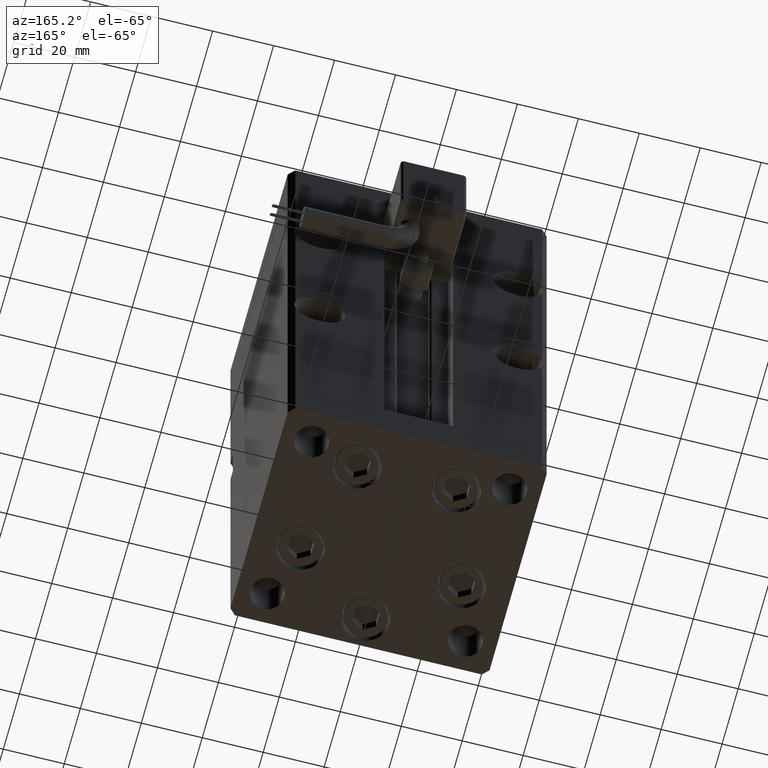
[diagram: clean part render]
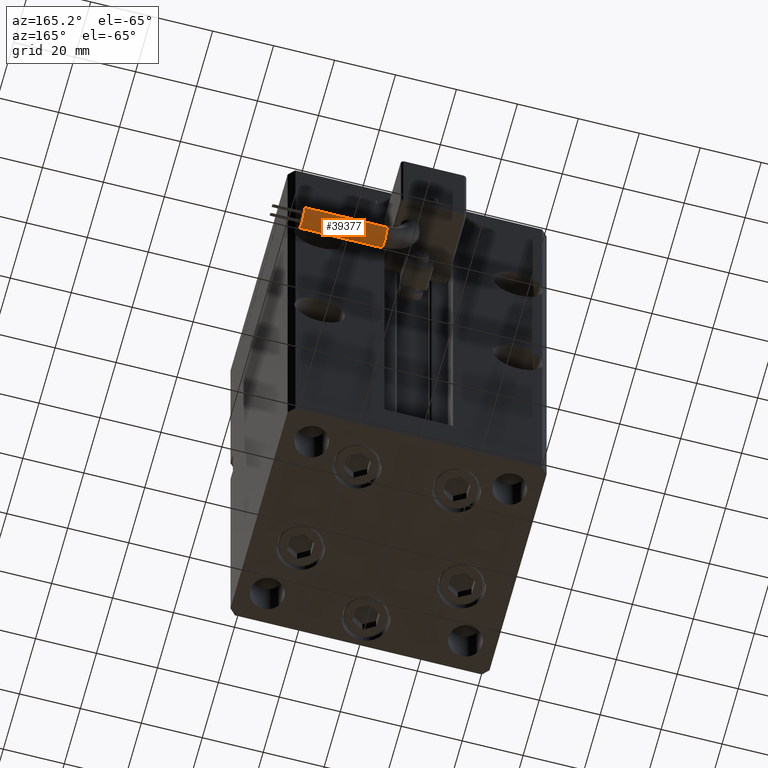
[diagram: same view with one face highlighted and labeled with its STEP entity id]
A machine part, auxiliary view. The second image highlights one B-rep face of the part: STEP entity #39377.
In plain terms, the highlighted cylindrical surface (edge-blend (fillet) strip) has radius 3.5 mm, axis along (1, -0, 0).
Its self-contained STEP definition (entity closure, byte-faithful):
#396 = AXIS2_PLACEMENT_3D ( 'NONE', #4714, #22028, #10084 ) ;
#1570 = FACE_OUTER_BOUND ( 'NONE', #39524, .T. ) ;
#3683 = EDGE_CURVE ( 'NONE', #53779, #36851, #28318, .T. ) ;
#4714 = CARTESIAN_POINT ( 'NONE',  ( 13.79999999999999893, 42.00000000000000000, -65.00000000000000000 ) ) ;
#4867 = DIRECTION ( 'NONE',  ( 1.000000000000000000, -2.599999999999999847E-16, 2.220446049250000002E-16 ) ) ;
#6103 = LINE ( 'NONE', #31659, #30803 ) ;
#6420 = CARTESIAN_POINT ( 'NONE',  ( 40.80000000000000426, 38.50000000000000000, -65.00000000000000000 ) ) ;
#6557 = EDGE_CURVE ( 'NONE', #52481, #7472, #48366, .T. ) ;
#7472 = VERTEX_POINT ( 'NONE', #19923 ) ;
#10084 = DIRECTION ( 'NONE',  ( -4.956352788505158337E-16, -1.000000000000000000, 0.000000000000000000 ) ) ;
#10086 = DIRECTION ( 'NONE',  ( 0.000000000000000000, 0.000000000000000000, -1.000000000000000000 ) ) ;
#11669 = CIRCLE ( 'NONE', #23479, 3.500000000000003109 ) ;
#12453 = VECTOR ( 'NONE', #4867, 1000.000000000000000 ) ;
#16064 = CARTESIAN_POINT ( 'NONE',  ( 40.80000000000000426, 45.50000000000000711, -65.00000000000000000 ) ) ;
#19183 = ORIENTED_EDGE ( 'NONE', *, *, #54122, .T. ) ;
#19430 = VERTEX_POINT ( 'NONE', #36648 ) ;
#19923 = CARTESIAN_POINT ( 'NONE',  ( 13.79999999999999893, 42.00000000000000000, -68.50000000000000000 ) ) ;
#20522 = DIRECTION ( 'NONE',  ( 1.000000000000000000, 0.000000000000000000, 2.220446049250000002E-16 ) ) ;
#22028 = DIRECTION ( 'NONE',  ( 1.000000000000000000, -2.599999999999999847E-16, 2.220446049250000002E-16 ) ) ;
#23479 = AXIS2_PLACEMENT_3D ( 'NONE', #42671, #20522, #46377 ) ;
#23669 = EDGE_CURVE ( 'NONE', #52481, #53779, #6103, .T. ) ;
#28318 = CIRCLE ( 'NONE', #37365, 3.500000000000003109 ) ;
#28507 = DIRECTION ( 'NONE',  ( 1.000000000000000000, 0.000000000000000000, 2.220446049250000002E-16 ) ) ;
#29665 = CARTESIAN_POINT ( 'NONE',  ( 13.79999999999999893, 42.00000000000000000, -65.00000000000000000 ) ) ;
#30803 = VECTOR ( 'NONE', #45289, 1000.000000000000000 ) ;
#31659 = CARTESIAN_POINT ( 'NONE',  ( 13.79999999999999716, 38.50000000000000000, -65.00000000000000000 ) ) ;
#36555 = AXIS2_PLACEMENT_3D ( 'NONE', #29665, #42724, #43565 ) ;
#36648 = CARTESIAN_POINT ( 'NONE',  ( 13.79999999999999893, 45.50000000000000711, -65.00000000000000000 ) ) ;
#36851 = VERTEX_POINT ( 'NONE', #16064 ) ;
#37365 = AXIS2_PLACEMENT_3D ( 'NONE', #49550, #28507, #10086 ) ;
#38445 = ORIENTED_EDGE ( 'NONE', *, *, #49363, .T. ) ;
#39377 = ADVANCED_FACE ( 'NONE', ( #1570 ), #48995, .T. ) ;
#39524 = EDGE_LOOP ( 'NONE', ( #41065, #19183, #38445, #48019, #55630 ) ) ;
#41065 = ORIENTED_EDGE ( 'NONE', *, *, #6557, .T. ) ;
#42671 = CARTESIAN_POINT ( 'NONE',  ( 13.79999999999999893, 42.00000000000000000, -65.00000000000000000 ) ) ;
#42724 = DIRECTION ( 'NONE',  ( 1.000000000000000000, 0.000000000000000000, 2.220446049250000002E-16 ) ) ;
#43565 = DIRECTION ( 'NONE',  ( 0.000000000000000000, 0.000000000000000000, -1.000000000000000000 ) ) ;
#45289 = DIRECTION ( 'NONE',  ( 1.000000000000000000, -2.599999999999999847E-16, 2.220446049250000002E-16 ) ) ;
#46223 = CARTESIAN_POINT ( 'NONE',  ( 13.79999999999999893, 38.50000000000000000, -65.00000000000000000 ) ) ;
#46377 = DIRECTION ( 'NONE',  ( 0.000000000000000000, 0.000000000000000000, -1.000000000000000000 ) ) ;
#48019 = ORIENTED_EDGE ( 'NONE', *, *, #3683, .F. ) ;
#48366 = CIRCLE ( 'NONE', #36555, 3.500000000000003109 ) ;
#48995 = CYLINDRICAL_SURFACE ( 'NONE', #396, 3.500000000000003109 ) ;
#49363 = EDGE_CURVE ( 'NONE', #19430, #36851, #55730, .T. ) ;
#49550 = CARTESIAN_POINT ( 'NONE',  ( 40.80000000000000426, 42.00000000000000000, -65.00000000000000000 ) ) ;
#52481 = VERTEX_POINT ( 'NONE', #46223 ) ;
#52577 = CARTESIAN_POINT ( 'NONE',  ( 13.80000000000000071, 45.50000000000000711, -65.00000000000000000 ) ) ;
#53779 = VERTEX_POINT ( 'NONE', #6420 ) ;
#54122 = EDGE_CURVE ( 'NONE', #7472, #19430, #11669, .T. ) ;
#55630 = ORIENTED_EDGE ( 'NONE', *, *, #23669, .F. ) ;
#55730 = LINE ( 'NONE', #52577, #12453 ) ;